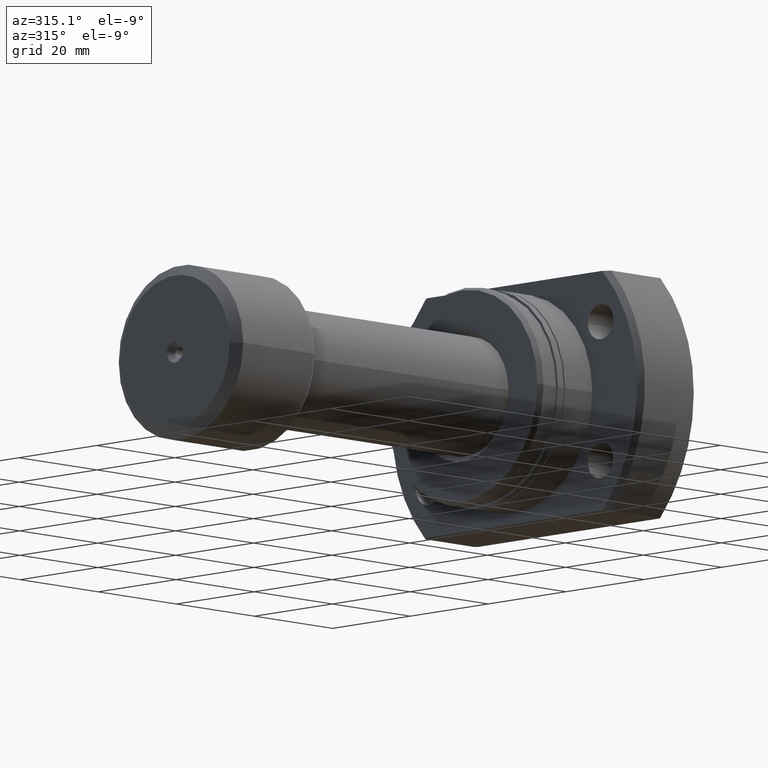
[diagram: clean part render]
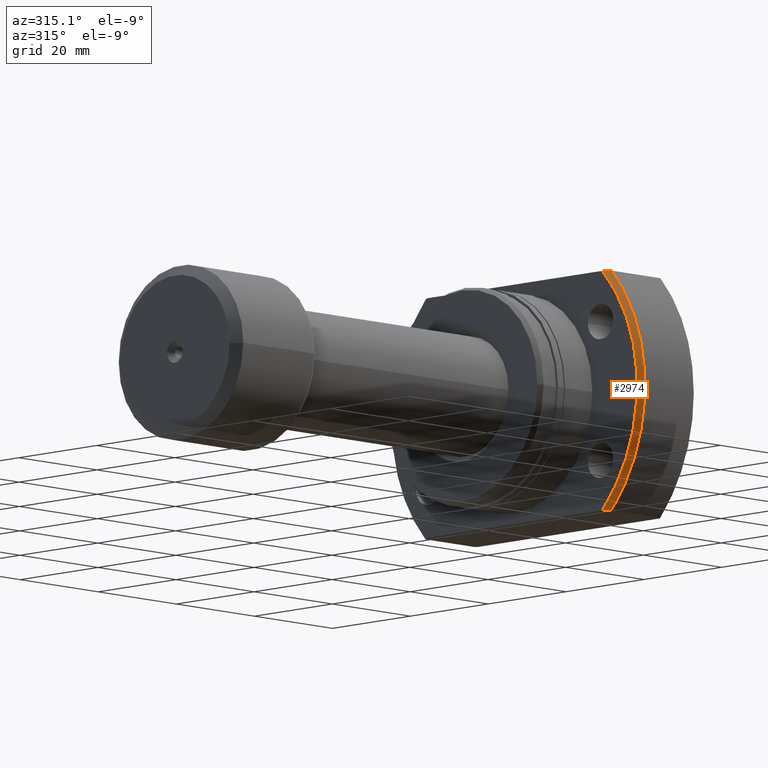
[diagram: same view with one face highlighted and labeled with its STEP entity id]
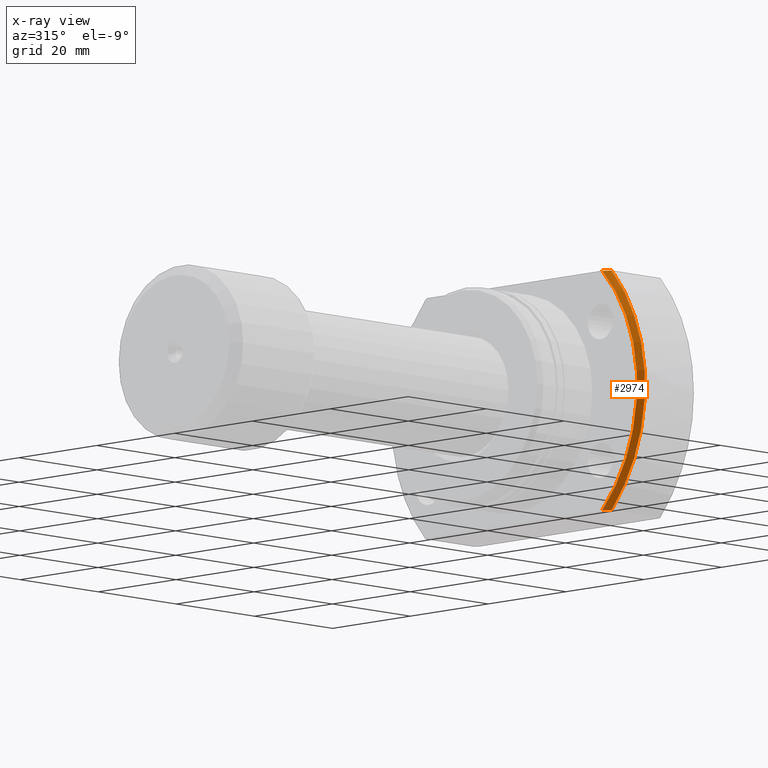
[diagram: x-ray of the same camera — body ghosted, the highlighted face saturated]
A machine part, auxiliary view. The second image highlights one B-rep face of the part: STEP entity #2974.
The next image is the same camera in x-ray: the body ghosted, the highlighted face saturated — about 0% of this face is hidden behind the body in this view.
In plain terms, the highlighted conical surface has half-angle 45 deg.
Its self-contained STEP definition (entity closure, byte-faithful):
#66 = B_SPLINE_CURVE_WITH_KNOTS ( 'NONE', 3,
 ( #943, #699, #1251, #3187 ),
 .UNSPECIFIED., .F., .F.,
 ( 4, 4 ),
 ( 0.08934887722955493772, 0.09106053602301761307 ),
 .UNSPECIFIED. ) ;
#123 = DIRECTION ( 'NONE',  ( 1.000000000000000000, 1.335978326342566810E-17, -0.000000000000000000 ) ) ;
#201 = AXIS2_PLACEMENT_3D ( 'NONE', #1119, #911, #3138 ) ;
#269 = CARTESIAN_POINT ( 'NONE',  ( 14.49999999999999289, -23.92174742781091012, 22.00000000000000711 ) ) ;
#462 = AXIS2_PLACEMENT_3D ( 'NONE', #2621, #123, #614 ) ;
#614 = DIRECTION ( 'NONE',  ( 0.000000000000000000, 1.000000000000000000, 0.000000000000000000 ) ) ;
#691 = CIRCLE ( 'NONE', #462, 32.49999999999991473 ) ;
#699 = CARTESIAN_POINT ( 'NONE',  ( 13.82998096711740033, -23.00546414414808538, 22.00000000000000355 ) ) ;
#911 = DIRECTION ( 'NONE',  ( 1.000000000000000000, 1.335978326342566810E-17, -0.000000000000000000 ) ) ;
#924 = CARTESIAN_POINT ( 'NONE',  ( 13.50000000000001421, -22.54440063519093940, -22.00000000000000355 ) ) ;
#936 = VERTEX_POINT ( 'NONE', #3167 ) ;
#943 = CARTESIAN_POINT ( 'NONE',  ( 13.50000000000001421, -22.54440063519093940, 22.00000000000000355 ) ) ;
#980 = VERTEX_POINT ( 'NONE', #924 ) ;
#1066 = CARTESIAN_POINT ( 'NONE',  ( 13.82998096711740033, -23.00546414414808538, -22.00000000000000355 ) ) ;
#1119 = CARTESIAN_POINT ( 'NONE',  ( 13.50000000000000178, 1.803570740562465225E-16, 0.000000000000000000 ) ) ;
#1243 = ORIENTED_EDGE ( 'NONE', *, *, #3153, .F. ) ;
#1251 = CARTESIAN_POINT ( 'NONE',  ( 14.16344437228347886, -23.46450416271139261, 22.00000000000000355 ) ) ;
#1292 = EDGE_LOOP ( 'NONE', ( #1243, #2312, #2661, #2767 ) ) ;
#1312 = EDGE_CURVE ( 'NONE', #1942, #936, #691, .T. ) ;
#1352 = EDGE_CURVE ( 'NONE', #1929, #980, #3219, .T. ) ;
#1585 = FACE_OUTER_BOUND ( 'NONE', #1292, .T. ) ;
#1601 = DIRECTION ( 'NONE',  ( 1.000000000000000000, 1.335978326342566810E-17, -0.000000000000000000 ) ) ;
#1636 = CARTESIAN_POINT ( 'NONE',  ( 13.50000000000000178, 1.803570740562465225E-16, 0.000000000000000000 ) ) ;
#1808 = CONICAL_SURFACE ( 'NONE', #201, 31.49999999999993250, 0.7853981633974466137 ) ;
#1929 = VERTEX_POINT ( 'NONE', #3024 ) ;
#1942 = VERTEX_POINT ( 'NONE', #269 ) ;
#2056 = EDGE_CURVE ( 'NONE', #980, #936, #2256, .T. ) ;
#2256 = B_SPLINE_CURVE_WITH_KNOTS ( 'NONE', 3,
 ( #2801, #1066, #2523, #2569 ),
 .UNSPECIFIED., .F., .F.,
 ( 4, 4 ),
 ( 0.08934887722955493772, 0.09106053602301761307 ),
 .UNSPECIFIED. ) ;
#2312 = ORIENTED_EDGE ( 'NONE', *, *, #1352, .T. ) ;
#2381 = AXIS2_PLACEMENT_3D ( 'NONE', #1636, #1601, #2835 ) ;
#2523 = CARTESIAN_POINT ( 'NONE',  ( 14.16344437228347886, -23.46450416271139261, -22.00000000000000355 ) ) ;
#2569 = CARTESIAN_POINT ( 'NONE',  ( 14.49999999999999289, -23.92174742781091368, -22.00000000000000355 ) ) ;
#2621 = CARTESIAN_POINT ( 'NONE',  ( 14.49999999999999289, 1.937168573196720858E-16, 0.000000000000000000 ) ) ;
#2661 = ORIENTED_EDGE ( 'NONE', *, *, #2056, .T. ) ;
#2767 = ORIENTED_EDGE ( 'NONE', *, *, #1312, .F. ) ;
#2801 = CARTESIAN_POINT ( 'NONE',  ( 13.50000000000001421, -22.54440063519093940, -22.00000000000000355 ) ) ;
#2835 = DIRECTION ( 'NONE',  ( 0.000000000000000000, 1.000000000000000000, 0.000000000000000000 ) ) ;
#2974 = ADVANCED_FACE ( 'NONE', ( #1585 ), #1808, .T. ) ;
#3024 = CARTESIAN_POINT ( 'NONE',  ( 13.50000000000001421, -22.54440063519093940, 22.00000000000000355 ) ) ;
#3138 = DIRECTION ( 'NONE',  ( 0.000000000000000000, 1.000000000000000000, 0.000000000000000000 ) ) ;
#3153 = EDGE_CURVE ( 'NONE', #1929, #1942, #66, .T. ) ;
#3167 = CARTESIAN_POINT ( 'NONE',  ( 14.49999999999999289, -23.92174742781091368, -22.00000000000000355 ) ) ;
#3187 = CARTESIAN_POINT ( 'NONE',  ( 14.49999999999999289, -23.92174742781091012, 22.00000000000000711 ) ) ;
#3219 = CIRCLE ( 'NONE', #2381, 31.49999999999993250 ) ;